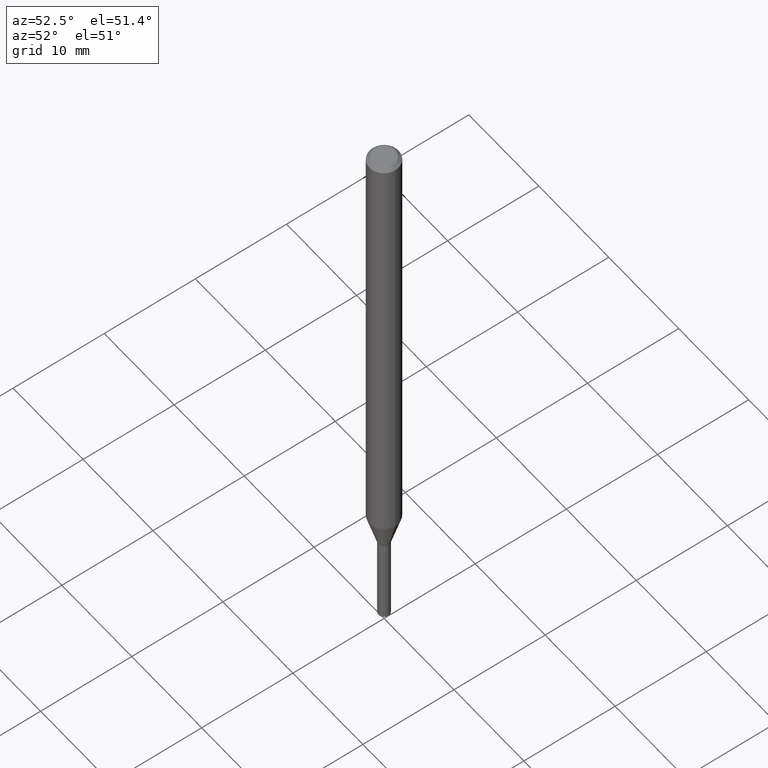
[diagram: clean part render]
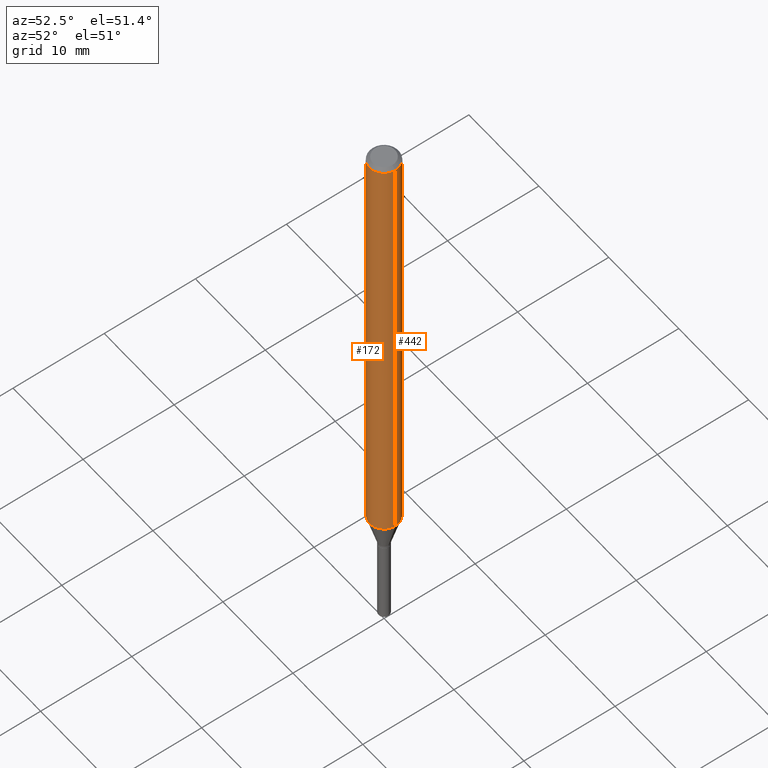
[diagram: same view with one multi-face feature highlighted, each face labeled with its STEP entity id]
A machine part, auxiliary view. The highlighted faces form ONE feature: a constant-radius fillet chain: 2 tangent blend faces with common blend radius 1.5875 mm. The faces share edges in the B-rep.
Their STEP definitions:
[1] entity #442 (Cylinder):
#45 = EDGE_CURVE ( 'NONE', #257, #303, #440, .T. ) ;
#52 = AXIS2_PLACEMENT_3D ( 'NONE', #116, #266, #366 ) ;
#58 = CARTESIAN_POINT ( 'NONE',  ( 0.06250000000000000000, -4.888073874380388472E-16, -0.01499999999999999944 ) ) ;
#66 = CYLINDRICAL_SURFACE ( 'NONE', #203, 0.06250000000000000000 ) ;
#74 = CARTESIAN_POINT ( 'NONE',  ( -0.06250000000000000000, 4.440892098500626162E-16, -3.074334431409316114E-30 ) ) ;
#97 = DIRECTION ( 'NONE',  ( -2.445468806185136597E-29, 3.491481338843145583E-15, 1.000000000000000000 ) ) ;
#102 = VERTEX_POINT ( 'NONE', #58 ) ;
#103 = ORIENTED_EDGE ( 'NONE', *, *, #124, .T. ) ;
#116 = CARTESIAN_POINT ( 'NONE',  ( 4.813783116788080428E-29, -6.872806506055007180E-15, -1.968450018504815269 ) ) ;
#124 = EDGE_CURVE ( 'NONE', #303, #163, #281, .T. ) ;
#133 = CARTESIAN_POINT ( 'NONE',  ( 3.668203209277705088E-31, -5.237222008264718399E-17, -0.01499999999999999944 ) ) ;
#140 = EDGE_CURVE ( 'NONE', #257, #102, #395, .T. ) ;
#163 = VERTEX_POINT ( 'NONE', #322 ) ;
#169 = CARTESIAN_POINT ( 'NONE',  ( -0.06250000000000000000, -6.428717296204944564E-15, -1.968450018504815269 ) ) ;
#173 = DIRECTION ( 'NONE',  ( -2.445468806185136597E-29, 3.491481338843145583E-15, 1.000000000000000000 ) ) ;
#176 = DIRECTION ( 'NONE',  ( -2.445468806185136877E-29, 3.491481338843145188E-15, 1.000000000000000000 ) ) ;
#177 = DIRECTION ( 'NONE',  ( -2.445468806185136877E-29, 3.491481338843145188E-15, 1.000000000000000000 ) ) ;
#178 = VECTOR ( 'NONE', #176, 39.37007874015748143 ) ;
#198 = ORIENTED_EDGE ( 'NONE', *, *, #140, .F. ) ;
#203 = AXIS2_PLACEMENT_3D ( 'NONE', #214, #173, #224 ) ;
#207 = DIRECTION ( 'NONE',  ( 1.000000000000000000, -6.982962677686266711E-15, 0.000000000000000000 ) ) ;
#214 = CARTESIAN_POINT ( 'NONE',  ( 0.000000000000000000, 0.000000000000000000, 0.000000000000000000 ) ) ;
#220 = ORIENTED_EDGE ( 'NONE', *, *, #45, .T. ) ;
#224 = DIRECTION ( 'NONE',  ( 1.000000000000000000, -6.982962677686266711E-15, 4.876176775795935793E-29 ) ) ;
#257 = VERTEX_POINT ( 'NONE', #269 ) ;
#266 = DIRECTION ( 'NONE',  ( -2.445468806185136597E-29, 3.491481338843145583E-15, 1.000000000000000000 ) ) ;
#269 = CARTESIAN_POINT ( 'NONE',  ( 0.06250000000000000000, -7.309241673410397272E-15, -1.968450018504815269 ) ) ;
#281 = LINE ( 'NONE', #74, #420 ) ;
#298 = FACE_OUTER_BOUND ( 'NONE', #379, .T. ) ;
#303 = VERTEX_POINT ( 'NONE', #169 ) ;
#322 = CARTESIAN_POINT ( 'NONE',  ( -0.06250000000000000000, -3.018500153218765105E-15, -0.01499999999999999944 ) ) ;
#336 = CARTESIAN_POINT ( 'NONE',  ( 0.06250000000000000000, -4.364351673553916694E-16, 3.047610484872459871E-30 ) ) ;
#357 = AXIS2_PLACEMENT_3D ( 'NONE', #133, #97, #207 ) ;
#366 = DIRECTION ( 'NONE',  ( 1.000000000000000000, -6.982962677686262766E-15, 0.000000000000000000 ) ) ;
#379 = EDGE_LOOP ( 'NONE', ( #220, #103, #392, #198 ) ) ;
#392 = ORIENTED_EDGE ( 'NONE', *, *, #407, .F. ) ;
#395 = LINE ( 'NONE', #336, #178 ) ;
#407 = EDGE_CURVE ( 'NONE', #102, #163, #435, .T. ) ;
#420 = VECTOR ( 'NONE', #177, 39.37007874015748143 ) ;
#435 = CIRCLE ( 'NONE', #357, 0.06250000000000000000 ) ;
#440 = CIRCLE ( 'NONE', #52, 0.06250000000000000000 ) ;
#442 = ADVANCED_FACE ( 'NONE', ( #298 ), #66, .T. ) ;
[2] entity #172 (Cylinder):
#31 = ORIENTED_EDGE ( 'NONE', *, *, #124, .F. ) ;
#40 = EDGE_LOOP ( 'NONE', ( #31, #93, #227, #346 ) ) ;
#57 = EDGE_CURVE ( 'NONE', #163, #102, #321, .T. ) ;
#58 = CARTESIAN_POINT ( 'NONE',  ( 0.06250000000000000000, -4.888073874380388472E-16, -0.01499999999999999944 ) ) ;
#65 = FACE_OUTER_BOUND ( 'NONE', #40, .T. ) ;
#74 = CARTESIAN_POINT ( 'NONE',  ( -0.06250000000000000000, 4.440892098500626162E-16, -3.074334431409316114E-30 ) ) ;
#76 = CARTESIAN_POINT ( 'NONE',  ( 4.813783116788080428E-29, -6.872806506055007180E-15, -1.968450018504815269 ) ) ;
#93 = ORIENTED_EDGE ( 'NONE', *, *, #160, .T. ) ;
#102 = VERTEX_POINT ( 'NONE', #58 ) ;
#124 = EDGE_CURVE ( 'NONE', #303, #163, #281, .T. ) ;
#140 = EDGE_CURVE ( 'NONE', #257, #102, #395, .T. ) ;
#141 = CARTESIAN_POINT ( 'NONE',  ( 0.000000000000000000, 0.000000000000000000, 0.000000000000000000 ) ) ;
#151 = DIRECTION ( 'NONE',  ( -2.445468806185136597E-29, 3.491481338843145583E-15, 1.000000000000000000 ) ) ;
#160 = EDGE_CURVE ( 'NONE', #303, #257, #194, .T. ) ;
#163 = VERTEX_POINT ( 'NONE', #322 ) ;
#169 = CARTESIAN_POINT ( 'NONE',  ( -0.06250000000000000000, -6.428717296204944564E-15, -1.968450018504815269 ) ) ;
#171 = DIRECTION ( 'NONE',  ( 1.000000000000000000, -6.982962677686266711E-15, 4.876176775795935793E-29 ) ) ;
#172 = ADVANCED_FACE ( 'NONE', ( #65 ), #221, .T. ) ;
#176 = DIRECTION ( 'NONE',  ( -2.445468806185136877E-29, 3.491481338843145188E-15, 1.000000000000000000 ) ) ;
#177 = DIRECTION ( 'NONE',  ( -2.445468806185136877E-29, 3.491481338843145188E-15, 1.000000000000000000 ) ) ;
#178 = VECTOR ( 'NONE', #176, 39.37007874015748143 ) ;
#181 = DIRECTION ( 'NONE',  ( -2.445468806185136597E-29, 3.491481338843145583E-15, 1.000000000000000000 ) ) ;
#194 = CIRCLE ( 'NONE', #215, 0.06250000000000000000 ) ;
#215 = AXIS2_PLACEMENT_3D ( 'NONE', #76, #181, #330 ) ;
#221 = CYLINDRICAL_SURFACE ( 'NONE', #344, 0.06250000000000000000 ) ;
#227 = ORIENTED_EDGE ( 'NONE', *, *, #140, .T. ) ;
#257 = VERTEX_POINT ( 'NONE', #269 ) ;
#269 = CARTESIAN_POINT ( 'NONE',  ( 0.06250000000000000000, -7.309241673410397272E-15, -1.968450018504815269 ) ) ;
#281 = LINE ( 'NONE', #74, #420 ) ;
#303 = VERTEX_POINT ( 'NONE', #169 ) ;
#321 = CIRCLE ( 'NONE', #374, 0.06250000000000000000 ) ;
#322 = CARTESIAN_POINT ( 'NONE',  ( -0.06250000000000000000, -3.018500153218765105E-15, -0.01499999999999999944 ) ) ;
#330 = DIRECTION ( 'NONE',  ( 1.000000000000000000, -6.982962677686262766E-15, 0.000000000000000000 ) ) ;
#336 = CARTESIAN_POINT ( 'NONE',  ( 0.06250000000000000000, -4.364351673553916694E-16, 3.047610484872459871E-30 ) ) ;
#344 = AXIS2_PLACEMENT_3D ( 'NONE', #141, #456, #171 ) ;
#346 = ORIENTED_EDGE ( 'NONE', *, *, #57, .F. ) ;
#374 = AXIS2_PLACEMENT_3D ( 'NONE', #398, #151, #405 ) ;
#395 = LINE ( 'NONE', #336, #178 ) ;
#398 = CARTESIAN_POINT ( 'NONE',  ( 3.668203209277705088E-31, -5.237222008264718399E-17, -0.01499999999999999944 ) ) ;
#405 = DIRECTION ( 'NONE',  ( 1.000000000000000000, -6.982962677686266711E-15, 0.000000000000000000 ) ) ;
#420 = VECTOR ( 'NONE', #177, 39.37007874015748143 ) ;
#456 = DIRECTION ( 'NONE',  ( -2.445468806185136597E-29, 3.491481338843145583E-15, 1.000000000000000000 ) ) ;